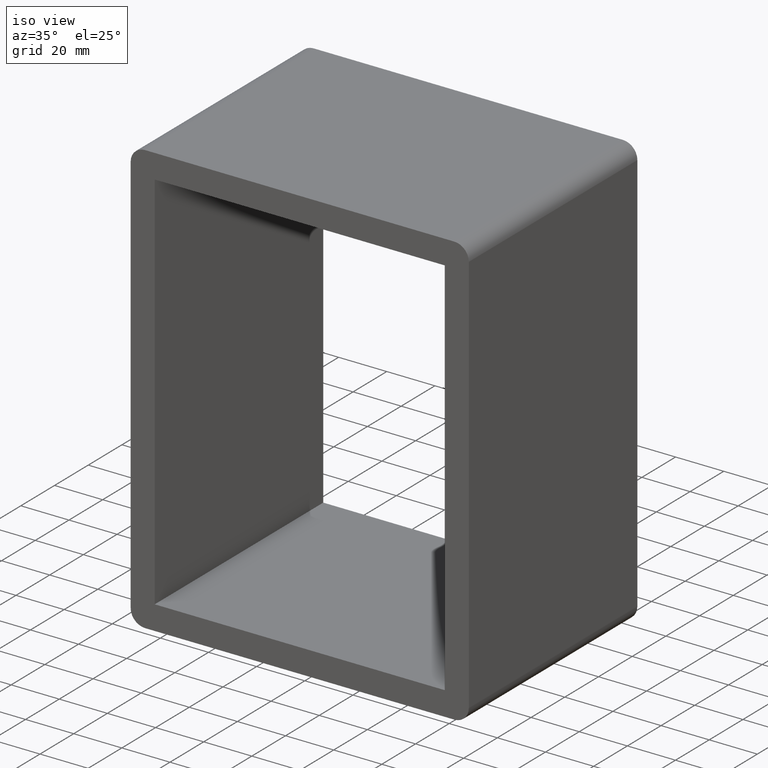
[diagram: clean part render]
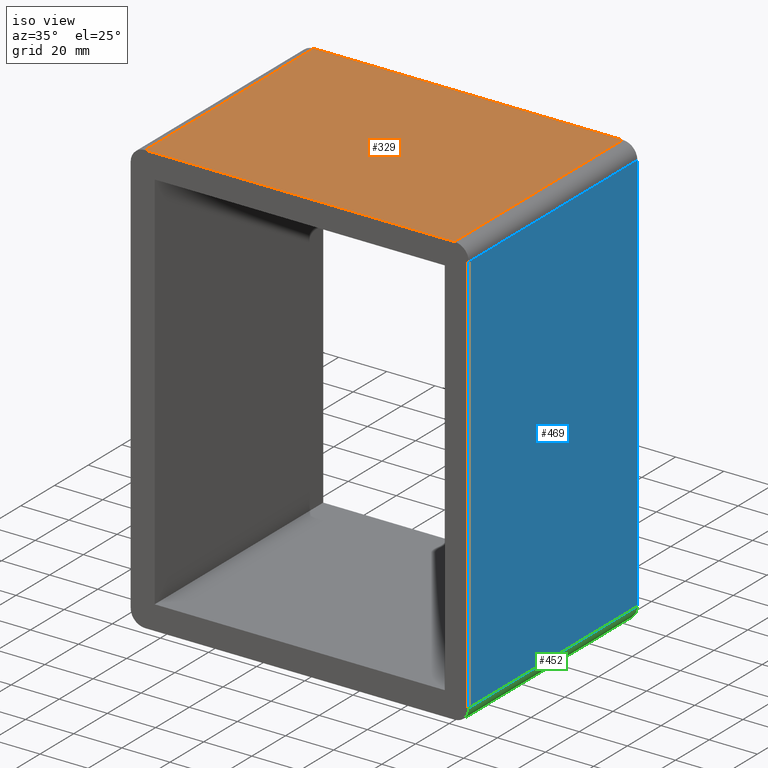
[diagram: same view with three faces highlighted in distinct colors, each labeled with its STEP entity id]
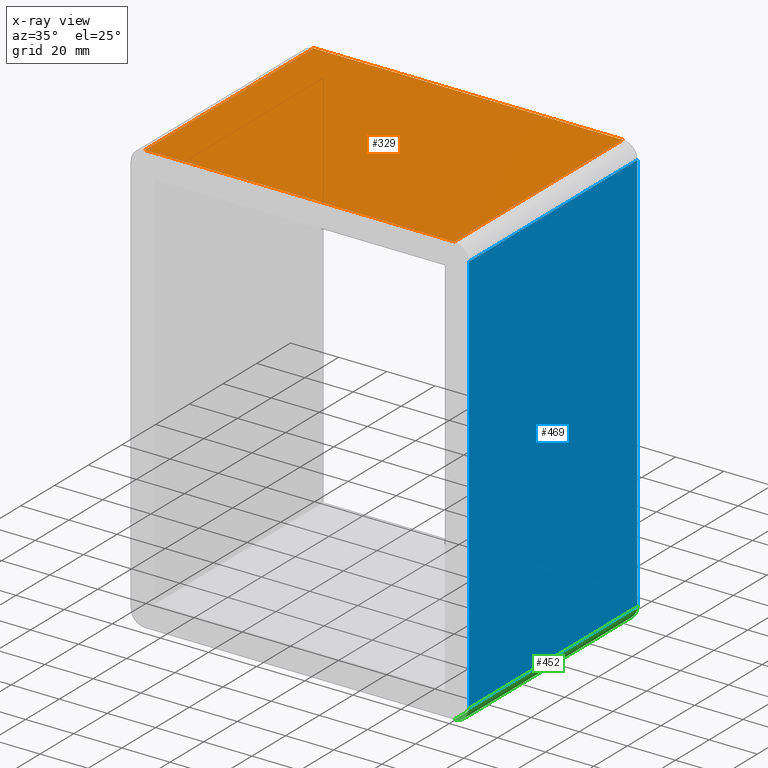
[diagram: x-ray of the same camera — body ghosted, the three highlighted faces saturated]
A machine part, iso view with three faces highlighted in distinct colors.
The next image is the same camera in x-ray (body ghosted, the three faces saturated) — at least one of them is partly hidden behind the body in this view.
Their STEP definitions:

[orange] entity #329 — the highlighted planar face has unit normal (0, 0, 1).
#207=CARTESIAN_POINT('',(64.25,-3.0,89.750000000000014));
#208=VERTEX_POINT('',#207);
#216=CARTESIAN_POINT('',(-64.25,-3.0,89.750000000000014));
#217=VERTEX_POINT('',#216);
#218=CARTESIAN_POINT('',(64.25,-3.0,89.750000000000014));
#219=DIRECTION('',(-1.0,0.0,0.0));
#220=VECTOR('',#219,128.5);
#221=LINE('',#218,#220);
#222=EDGE_CURVE('',#208,#217,#221,.T.);
#287=CARTESIAN_POINT('',(64.25,97.0,89.750000000000014));
#288=VERTEX_POINT('',#287);
#296=CARTESIAN_POINT('',(64.25,-3.0,89.750000000000014));
#297=DIRECTION('',(0.0,1.0,0.0));
#298=VECTOR('',#297,100.0);
#299=LINE('',#296,#298);
#300=EDGE_CURVE('',#208,#288,#299,.T.);
#306=CARTESIAN_POINT('',(-64.25,0.0,89.750000000000014));
#307=DIRECTION('',(0.0,0.0,1.0));
#308=DIRECTION('',(1.0,0.0,0.0));
#309=AXIS2_PLACEMENT_3D('',#306,#307,#308);
#310=PLANE('',#309);
#311=ORIENTED_EDGE('',*,*,#300,.T.);
#312=CARTESIAN_POINT('',(-64.25,97.0,89.750000000000014));
#313=VERTEX_POINT('',#312);
#314=CARTESIAN_POINT('',(-64.25,97.0,89.750000000000014));
#315=DIRECTION('',(1.0,0.0,0.0));
#316=VECTOR('',#315,128.5);
#317=LINE('',#314,#316);
#318=EDGE_CURVE('',#313,#288,#317,.T.);
#319=ORIENTED_EDGE('',*,*,#318,.F.);
#320=CARTESIAN_POINT('',(-64.25,-3.0,89.750000000000014));
#321=DIRECTION('',(0.0,1.0,0.0));
#322=VECTOR('',#321,100.0);
#323=LINE('',#320,#322);
#324=EDGE_CURVE('',#217,#313,#323,.T.);
#325=ORIENTED_EDGE('',*,*,#324,.F.);
#326=ORIENTED_EDGE('',*,*,#222,.F.);
#327=EDGE_LOOP('',(#311,#319,#325,#326));
#328=FACE_OUTER_BOUND('',#327,.T.);
#329=ADVANCED_FACE('',(#328),#310,.T.);

[blue] entity #469 — the highlighted planar face has unit normal (1, 0, 0).
#197=CARTESIAN_POINT('',(70.25,-3.0,-83.750000000000028));
#198=VERTEX_POINT('',#197);
#199=CARTESIAN_POINT('',(70.25,-3.0,83.75));
#200=VERTEX_POINT('',#199);
#201=CARTESIAN_POINT('',(70.25,-3.0,-83.750000000000028));
#202=DIRECTION('',(0.0,0.0,1.0));
#203=VECTOR('',#202,167.50000000000003);
#204=LINE('',#201,#203);
#205=EDGE_CURVE('',#198,#200,#204,.T.);
#279=CARTESIAN_POINT('',(70.25,97.0,83.75));
#280=VERTEX_POINT('',#279);
#281=CARTESIAN_POINT('',(70.25,97.0,83.75));
#282=DIRECTION('',(0.0,-1.0,0.0));
#283=VECTOR('',#282,100.0);
#284=LINE('',#281,#283);
#285=EDGE_CURVE('',#280,#200,#284,.T.);
#434=CARTESIAN_POINT('',(70.25,97.0,-83.750000000000028));
#435=VERTEX_POINT('',#434);
#443=CARTESIAN_POINT('',(70.25,-3.0,-83.750000000000028));
#444=DIRECTION('',(0.0,1.0,0.0));
#445=VECTOR('',#444,100.0);
#446=LINE('',#443,#445);
#447=EDGE_CURVE('',#198,#435,#446,.T.);
#453=CARTESIAN_POINT('',(70.25,0.0,83.75));
#454=DIRECTION('',(1.0,0.0,0.0));
#455=DIRECTION('',(0.0,0.0,-1.0));
#456=AXIS2_PLACEMENT_3D('',#453,#454,#455);
#457=PLANE('',#456);
#458=ORIENTED_EDGE('',*,*,#447,.T.);
#459=CARTESIAN_POINT('',(70.25,97.0,83.75));
#460=DIRECTION('',(0.0,0.0,-1.0));
#461=VECTOR('',#460,167.50000000000003);
#462=LINE('',#459,#461);
#463=EDGE_CURVE('',#280,#435,#462,.T.);
#464=ORIENTED_EDGE('',*,*,#463,.F.);
#465=ORIENTED_EDGE('',*,*,#285,.T.);
#466=ORIENTED_EDGE('',*,*,#205,.F.);
#467=EDGE_LOOP('',(#458,#464,#465,#466));
#468=FACE_OUTER_BOUND('',#467,.T.);
#469=ADVANCED_FACE('',(#468),#457,.T.);

[green] entity #452 — the highlighted cylindrical surface (edge-blend (fillet) strip) has radius 6 mm, axis along (0, 1, 0).
#197=CARTESIAN_POINT('',(70.25,-3.0,-83.750000000000028));
#198=VERTEX_POINT('',#197);
#250=CARTESIAN_POINT('',(64.25,-3.0,-89.750000000000014));
#251=VERTEX_POINT('',#250);
#258=CARTESIAN_POINT('',(64.25,-3.0,-83.750000000000028));
#259=DIRECTION('',(0.0,-1.0,0.0));
#260=DIRECTION('',(1.0,0.0,0.0));
#261=AXIS2_PLACEMENT_3D('',#258,#259,#260);
#262=CIRCLE('',#261,6.000000000000001);
#263=EDGE_CURVE('',#251,#198,#262,.T.);
#410=CARTESIAN_POINT('',(64.25,97.0,-89.750000000000014));
#411=VERTEX_POINT('',#410);
#418=CARTESIAN_POINT('',(64.25,-3.0,-89.750000000000014));
#419=DIRECTION('',(0.0,1.0,0.0));
#420=VECTOR('',#419,100.0);
#421=LINE('',#418,#420);
#422=EDGE_CURVE('',#251,#411,#421,.T.);
#428=CARTESIAN_POINT('',(64.25,0.0,-83.750000000000028));
#429=DIRECTION('',(0.0,1.0,0.0));
#430=DIRECTION('',(1.0,0.0,0.0));
#431=AXIS2_PLACEMENT_3D('',#428,#429,#430);
#432=CYLINDRICAL_SURFACE('',#431,6.000000000000001);
#433=ORIENTED_EDGE('',*,*,#422,.T.);
#434=CARTESIAN_POINT('',(70.25,97.0,-83.750000000000028));
#435=VERTEX_POINT('',#434);
#436=CARTESIAN_POINT('',(64.25,97.0,-83.750000000000028));
#437=DIRECTION('',(0.0,1.0,0.0));
#438=DIRECTION('',(1.0,0.0,0.0));
#439=AXIS2_PLACEMENT_3D('',#436,#437,#438);
#440=CIRCLE('',#439,6.000000000000001);
#441=EDGE_CURVE('',#435,#411,#440,.T.);
#442=ORIENTED_EDGE('',*,*,#441,.F.);
#443=CARTESIAN_POINT('',(70.25,-3.0,-83.750000000000028));
#444=DIRECTION('',(0.0,1.0,0.0));
#445=VECTOR('',#444,100.0);
#446=LINE('',#443,#445);
#447=EDGE_CURVE('',#198,#435,#446,.T.);
#448=ORIENTED_EDGE('',*,*,#447,.F.);
#449=ORIENTED_EDGE('',*,*,#263,.F.);
#450=EDGE_LOOP('',(#433,#442,#448,#449));
#451=FACE_OUTER_BOUND('',#450,.T.);
#452=ADVANCED_FACE('',(#451),#432,.T.);